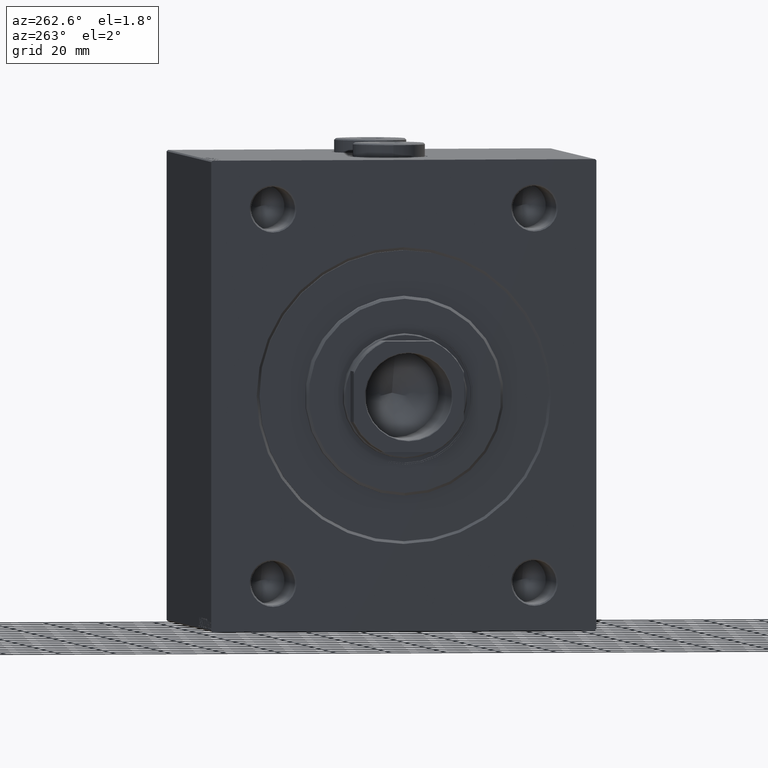
[diagram: clean part render]
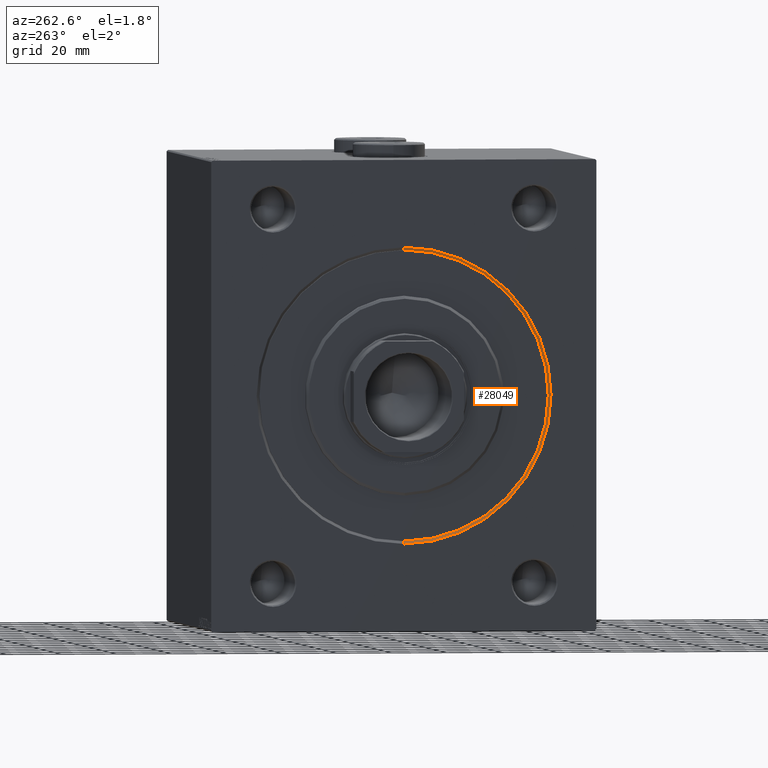
[diagram: same view with one face highlighted and labeled with its STEP entity id]
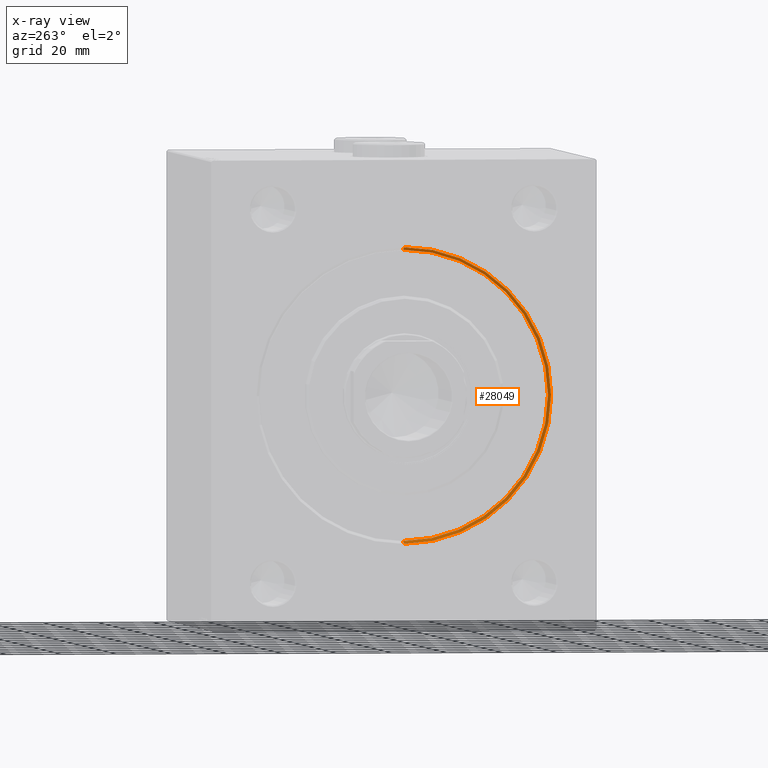
[diagram: x-ray of the same camera — body ghosted, the highlighted face saturated]
A machine part, auxiliary view. The second image highlights one B-rep face of the part: STEP entity #28049.
The next image is the same camera in x-ray: the body ghosted, the highlighted face saturated — about 0% of this face is hidden behind the body in this view.
In plain terms, the highlighted conical surface has half-angle 45 deg.
Its self-contained STEP definition (entity closure, byte-faithful):
#291 = DIRECTION ( 'NONE',  ( 0.000000000000000000, 0.000000000000000000, -1.000000000000000000 ) ) ;
#1468 = ORIENTED_EDGE ( 'NONE', *, *, #36573, .T. ) ;
#3243 = DIRECTION ( 'NONE',  ( -0.7071067811865425767, 8.659560562354994488E-17, -0.7071067811865525687 ) ) ;
#3985 = CARTESIAN_POINT ( 'NONE',  ( 0.000000000000000000, 0.000000000000000000, 53.50000000000000000 ) ) ;
#4367 = CARTESIAN_POINT ( 'NONE',  ( 0.000000000000000000, 6.551860375438339893E-15, -53.50000000000000000 ) ) ;
#6923 = DIRECTION ( 'NONE',  ( -0.7071067811865425767, 0.000000000000000000, 0.7071067811865525687 ) ) ;
#8635 = EDGE_LOOP ( 'NONE', ( #38681, #1468, #16156, #35181 ) ) ;
#10804 = EDGE_CURVE ( 'NONE', #24038, #20857, #41682, .T. ) ;
#10922 = DIRECTION ( 'NONE',  ( 0.000000000000000000, 0.000000000000000000, 1.000000000000000000 ) ) ;
#11448 = AXIS2_PLACEMENT_3D ( 'NONE', #38053, #42391, #291 ) ;
#14373 = CARTESIAN_POINT ( 'NONE',  ( 0.9999999999999940048, 0.000000000000000000, 0.000000000000000000 ) ) ;
#14826 = CARTESIAN_POINT ( 'NONE',  ( 0.9999999999999940048, 0.000000000000000000, 52.49999999999999289 ) ) ;
#15586 = CARTESIAN_POINT ( 'NONE',  ( 0.9999999999999940048, 0.000000000000000000, 0.000000000000000000 ) ) ;
#16156 = ORIENTED_EDGE ( 'NONE', *, *, #17622, .F. ) ;
#17053 = LINE ( 'NONE', #34748, #43555 ) ;
#17622 = EDGE_CURVE ( 'NONE', #20857, #35751, #39387, .T. ) ;
#18809 = DIRECTION ( 'NONE',  ( -1.000000000000000000, 0.000000000000000000, 0.000000000000000000 ) ) ;
#20684 = VERTEX_POINT ( 'NONE', #42389 ) ;
#20857 = VERTEX_POINT ( 'NONE', #3985 ) ;
#21507 = DIRECTION ( 'NONE',  ( -1.000000000000000000, 0.000000000000000000, 0.000000000000000000 ) ) ;
#21739 = FACE_OUTER_BOUND ( 'NONE', #8635, .T. ) ;
#22254 = DIRECTION ( 'NONE',  ( 0.000000000000000000, 0.000000000000000000, -1.000000000000000000 ) ) ;
#23137 = VECTOR ( 'NONE', #6923, 999.9999999999998863 ) ;
#24038 = VERTEX_POINT ( 'NONE', #14826 ) ;
#24992 = CONICAL_SURFACE ( 'NONE', #36761, 52.49999999999999289, 0.7853981633974552734 ) ;
#28049 = ADVANCED_FACE ( 'NONE', ( #21739 ), #24992, .F. ) ;
#34748 = CARTESIAN_POINT ( 'NONE',  ( 0.9999999999999940048, 6.429395695523603167E-15, -52.49999999999999289 ) ) ;
#35181 = ORIENTED_EDGE ( 'NONE', *, *, #10804, .F. ) ;
#35751 = VERTEX_POINT ( 'NONE', #4367 ) ;
#36433 = AXIS2_PLACEMENT_3D ( 'NONE', #15586, #18809, #22254 ) ;
#36573 = EDGE_CURVE ( 'NONE', #20684, #35751, #17053, .T. ) ;
#36761 = AXIS2_PLACEMENT_3D ( 'NONE', #14373, #21507, #10922 ) ;
#38053 = CARTESIAN_POINT ( 'NONE',  ( 0.000000000000000000, 0.000000000000000000, 0.000000000000000000 ) ) ;
#38459 = CARTESIAN_POINT ( 'NONE',  ( 0.9999999999999940048, 0.000000000000000000, 52.49999999999999289 ) ) ;
#38681 = ORIENTED_EDGE ( 'NONE', *, *, #41557, .F. ) ;
#39387 = CIRCLE ( 'NONE', #11448, 53.50000000000000000 ) ;
#41557 = EDGE_CURVE ( 'NONE', #20684, #24038, #44512, .T. ) ;
#41682 = LINE ( 'NONE', #38459, #23137 ) ;
#42389 = CARTESIAN_POINT ( 'NONE',  ( 0.9999999999999940048, 6.429395695523603167E-15, -52.49999999999999289 ) ) ;
#42391 = DIRECTION ( 'NONE',  ( 1.000000000000000000, 0.000000000000000000, 0.000000000000000000 ) ) ;
#43555 = VECTOR ( 'NONE', #3243, 999.9999999999998863 ) ;
#44512 = CIRCLE ( 'NONE', #36433, 52.49999999999999289 ) ;